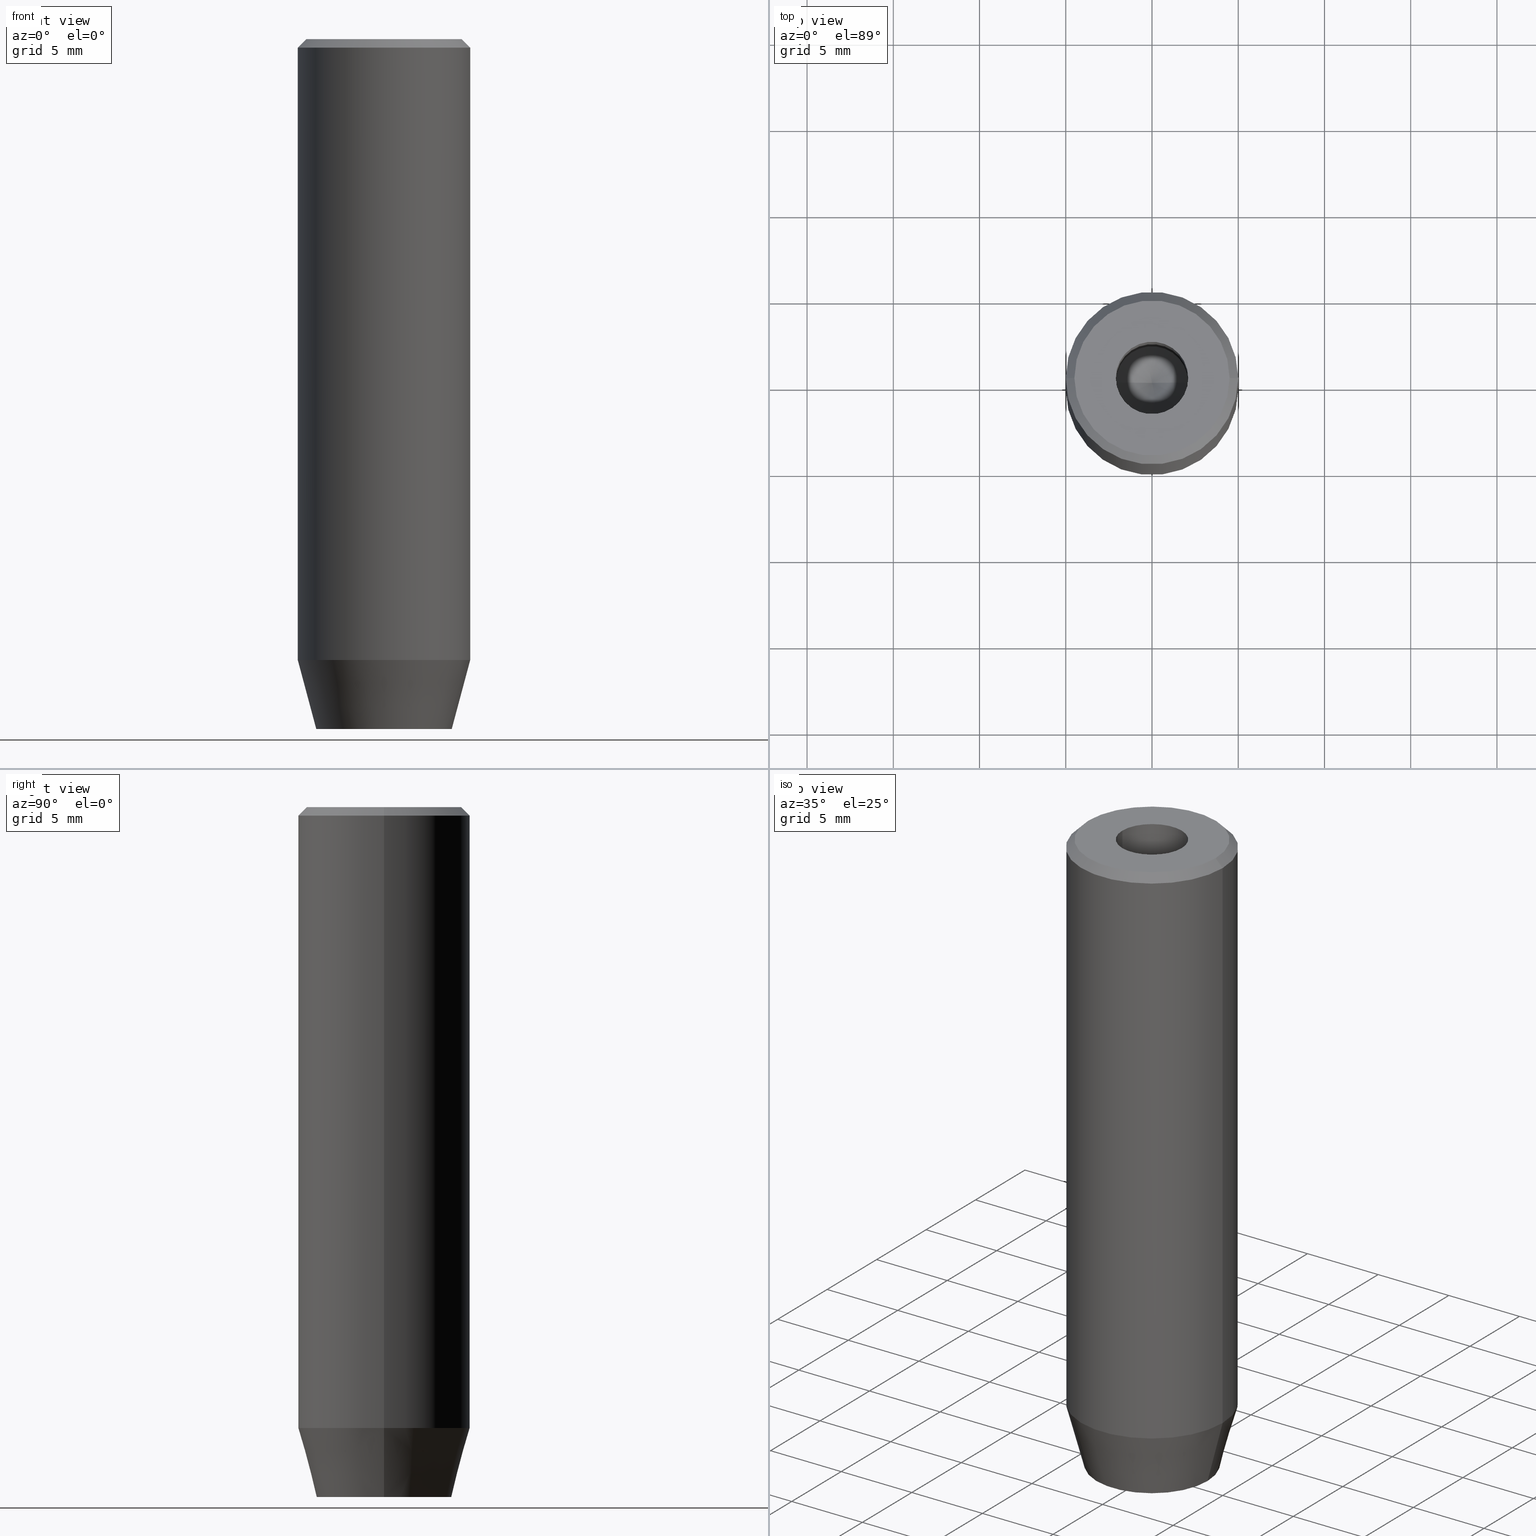
[diagram: canonical four-view strip — front | top / right | iso, engineering-drawing reading convention]
A machine part, canonical four-view strip (front | top / right | iso — engineering-drawing reading convention). The complete STEP part file that produces these views, byte-faithful:
ISO-10303-21;
HEADER;
FILE_DESCRIPTION (( 'STEP AP203' ),
    '1' );
FILE_NAME ('fadb.STEP',
    '2024-01-02T23:08:02',
    ( '' ),
    ( '' ),
    'SwSTEP 2.0',
    'SolidWorks 2019',
    '' );
FILE_SCHEMA (( 'CONFIG_CONTROL_DESIGN' ));
ENDSEC;

DATA;
#1 = EDGE_CURVE ( 'NONE', #580, #581, #550, .T. ) ;
#2 = ORIENTED_EDGE ( 'NONE', *, *, #479, .F. ) ;
#3 = CARTESIAN_POINT ( 'NONE',  ( -3.928203230275508773, 5.466947754046981113E-16, -40.00000000000000000 ) ) ;
#4 = MANIFOLD_SOLID_BREP ( 'Vrt�k z�vitn�ku pro M5 z�vit1', #148 ) ;
#5 = ORIENTED_EDGE ( 'NONE', *, *, #272, .F. ) ;
#6 = DIRECTION ( 'NONE',  ( -0.8660254037844388186, -0.4999999999999996114, 0.000000000000000000 ) ) ;
#7 = EDGE_LOOP ( 'NONE', ( #2, #358, #488 ) ) ;
#8 = VECTOR ( 'NONE', #141, 1000.000000000000000 ) ;
#9 = AXIS2_PLACEMENT_3D ( 'NONE', #508, #333, #50 ) ;
#10 = DIRECTION ( 'NONE',  ( 0.000000000000000000, -1.000000000000000000, 0.000000000000000000 ) ) ;
#11 = CARTESIAN_POINT ( 'NONE',  ( 5.000000000000000888, 0.000000000000000000, -36.00000000000000711 ) ) ;
#12 = EDGE_CURVE ( 'NONE', #214, #393, #281, .T. ) ;
#13 = CARTESIAN_POINT ( 'NONE',  ( -1.999999999999998668, -1.154700538379252572, -37.20000000000000284 ) ) ;
#14 = DIRECTION ( 'NONE',  ( -0.7071067811865500152, 0.000000000000000000, -0.7071067811865451302 ) ) ;
#15 = ORIENTED_EDGE ( 'NONE', *, *, #301, .T. ) ;
#16 = CARTESIAN_POINT ( 'NONE',  ( 2.000000000000000888, 1.154700538379251462, -40.00000000000000000 ) ) ;
#17 = VECTOR ( 'NONE', #387, 1000.000000000000000 ) ;
#18 = EDGE_CURVE ( 'NONE', #320, #260, #238, .T. ) ;
#19 = CARTESIAN_POINT ( 'NONE',  ( -1.000000000000000444, 1.732050807568877637, -37.20000000000000284 ) ) ;
#20 = CALENDAR_DATE ( 2024, 3, 1 ) ;
#21 = CARTESIAN_POINT ( 'NONE',  ( 0.000000000000000000, 3.928203230275508773, -40.00000000000000000 ) ) ;
#22 = PERSON_AND_ORGANIZATION ( #120, #288 ) ;
#23 = DIRECTION ( 'NONE',  ( 0.000000000000000000, 0.000000000000000000, -1.000000000000000000 ) ) ;
#24 = COORDINATED_UNIVERSAL_TIME_OFFSET ( 1, 0, .AHEAD. ) ;
#25 = EDGE_CURVE ( 'NONE', #534, #560, #111, .T. ) ;
#26 = VECTOR ( 'NONE', #510, 1000.000000000000000 ) ;
#27 = LOCAL_TIME ( 0, 8, 2.000000000000000000, #161 ) ;
#28 = SHAPE_DEFINITION_REPRESENTATION ( #501, #206 ) ;
#29 = CC_DESIGN_PERSON_AND_ORGANIZATION_ASSIGNMENT ( #254, #524, ( #173 ) ) ;
#30 = CARTESIAN_POINT ( 'NONE',  ( 0.000000000000000000, 0.000000000000000000, 0.000000000000000000 ) ) ;
#31 = EDGE_CURVE ( 'NONE', #544, #581, #51, .T. ) ;
#32 = CIRCLE ( 'NONE', #481, 3.928203230275508773 ) ;
#33 = LINE ( 'NONE', #209, #233 ) ;
#34 = VECTOR ( 'NONE', #228, 1000.000000000000000 ) ;
#35 = DIRECTION ( 'NONE',  ( 1.000000000000000000, 0.000000000000000000, 0.000000000000000000 ) ) ;
#36 = PLANE ( 'NONE',  #305 ) ;
#37 = VERTEX_POINT ( 'NONE', #323 ) ;
#38 = EDGE_LOOP ( 'NONE', ( #448, #375, #362, #454 ) ) ;
#39 = DIRECTION ( 'NONE',  ( -0.5000000000000001110, 0.8660254037844385966, 0.000000000000000000 ) ) ;
#40 = ORIENTED_EDGE ( 'NONE', *, *, #263, .F. ) ;
#41 = ORIENTED_EDGE ( 'NONE', *, *, #267, .T. ) ;
#42 = LINE ( 'NONE', #356, #123 ) ;
#43 = CARTESIAN_POINT ( 'NONE',  ( 0.000000000000000000, 0.000000000000000000, -15.00000000000000000 ) ) ;
#44 = VERTEX_POINT ( 'NONE', #54 ) ;
#45 = ORIENTED_EDGE ( 'NONE', *, *, #542, .F. ) ;
#46 = FACE_OUTER_BOUND ( 'NONE', #129, .T. ) ;
#47 = ORIENTED_EDGE ( 'NONE', *, *, #414, .F. ) ;
#48 = CARTESIAN_POINT ( 'NONE',  ( 0.000000000000000000, 0.000000000000000000, -40.00000000000000000 ) ) ;
#49 = DIRECTION ( 'NONE',  ( 1.000000000000000000, 0.000000000000000000, 0.000000000000000000 ) ) ;
#50 = DIRECTION ( 'NONE',  ( 1.000000000000000000, 0.000000000000000000, 0.000000000000000000 ) ) ;
#51 = LINE ( 'NONE', #229, #287 ) ;
#52 = VERTEX_POINT ( 'NONE', #3 ) ;
#53 = DIRECTION ( 'NONE',  ( -0.000000000000000000, -0.000000000000000000, 1.000000000000000000 ) ) ;
#54 = CARTESIAN_POINT ( 'NONE',  ( 2.168404344971008868E-16, -2.309401076758503812, -40.00000000000000000 ) ) ;
#55 = CARTESIAN_POINT ( 'NONE',  ( -2.099999999999998757, 2.571758278209439985E-16, -1.990051048614449116E-16 ) ) ;
#56 = AXIS2_PLACEMENT_3D ( 'NONE', #530, #303, #351 ) ;
#57 = ADVANCED_FACE ( 'NONE', ( #46 ), #357, .F. ) ;
#58 = VECTOR ( 'NONE', #142, 1000.000000000000000 ) ;
#59 = FACE_OUTER_BOUND ( 'NONE', #93, .T. ) ;
#60 = FACE_OUTER_BOUND ( 'NONE', #553, .T. ) ;
#61 = LINE ( 'NONE', #325, #411 ) ;
#62 = DIRECTION ( 'NONE',  ( 0.8660254037844385966, -0.5000000000000001110, 0.000000000000000000 ) ) ;
#63 = EDGE_CURVE ( 'NONE', #224, #214, #554, .T. ) ;
#64 = CARTESIAN_POINT ( 'NONE',  ( 0.000000000000000000, 0.000000000000000000, -0.4999999999999935052 ) ) ;
#65 = DIRECTION ( 'NONE',  ( -0.000000000000000000, 0.000000000000000000, -1.000000000000000000 ) ) ;
#66 = CONICAL_SURFACE ( 'NONE', #337, 5.000000000000000888, 0.2617993877991500740 ) ;
#67 = PERSON_AND_ORGANIZATION ( #120, #288 ) ;
#68 = CARTESIAN_POINT ( 'NONE',  ( 0.9999999999999997780, -1.732050807568878747, -37.20000000000000284 ) ) ;
#69 = DESIGN_CONTEXT ( 'detailed design', #536, 'design' ) ;
#70 = CARTESIAN_POINT ( 'NONE',  ( -1.999999999999998668, -1.154700538379252572, -37.20000000000000284 ) ) ;
#71 = COORDINATED_UNIVERSAL_TIME_OFFSET ( 1, 0, .AHEAD. ) ;
#72 = EDGE_CURVE ( 'NONE', #52, #86, #32, .T. ) ;
#73 = LINE ( 'NONE', #463, #92 ) ;
#74 = ADVANCED_FACE ( 'NONE', ( #450 ), #279, .F. ) ;
#75 = APPROVAL_DATE_TIME ( #116, #192 ) ;
#76 = LOCAL_TIME ( 0, 8, 2.000000000000000000, #284 ) ;
#77 = DIRECTION ( 'NONE',  ( -0.000000000000000000, -0.000000000000000000, 1.000000000000000000 ) ) ;
#78 = VECTOR ( 'NONE', #492, 1000.000000000000000 ) ;
#79 = CIRCLE ( 'NONE', #482, 2.099999999999998757 ) ;
#80 = ORIENTED_EDGE ( 'NONE', *, *, #513, .T. ) ;
#81 = DIRECTION ( 'NONE',  ( -0.000000000000000000, -0.000000000000000000, 1.000000000000000000 ) ) ;
#82 = VERTEX_POINT ( 'NONE', #442 ) ;
#83 = ORIENTED_EDGE ( 'NONE', *, *, #378, .F. ) ;
#84 = DIRECTION ( 'NONE',  ( -0.000000000000000000, -0.000000000000000000, 1.000000000000000000 ) ) ;
#85 = EDGE_CURVE ( 'NONE', #320, #82, #377, .T. ) ;
#86 = VERTEX_POINT ( 'NONE', #89 ) ;
#87 = EDGE_LOOP ( 'NONE', ( #406, #211, #353, #529, #170, #276 ) ) ;
#88 = DIRECTION ( 'NONE',  ( -0.000000000000000000, -0.000000000000000000, 1.000000000000000000 ) ) ;
#89 = CARTESIAN_POINT ( 'NONE',  ( 3.928203230275508773, 0.000000000000000000, -40.00000000000000000 ) ) ;
#90 = CC_DESIGN_PERSON_AND_ORGANIZATION_ASSIGNMENT ( #465, #112, ( #331 ) ) ;
#91 = DIRECTION ( 'NONE',  ( -0.8660254037844385966, -0.5000000000000001110, 0.000000000000000000 ) ) ;
#92 = VECTOR ( 'NONE', #417, 1000.000000000000000 ) ;
#93 = EDGE_LOOP ( 'NONE', ( #540, #498, #549, #302, #400, #266 ) ) ;
#94 = ORIENTED_EDGE ( 'NONE', *, *, #559, .T. ) ;
#95 = DIRECTION ( 'NONE',  ( -0.000000000000000000, -0.000000000000000000, 1.000000000000000000 ) ) ;
#96 = DIRECTION ( 'NONE',  ( 1.000000000000000000, 0.000000000000000000, 0.000000000000000000 ) ) ;
#97 = DIRECTION ( 'NONE',  ( 1.000000000000000000, 0.000000000000000000, 0.000000000000000000 ) ) ;
#98 = ADVANCED_FACE ( 'NONE', ( #271 ), #222, .T. ) ;
#99 = ORIENTED_EDGE ( 'NONE', *, *, #391, .F. ) ;
#100 = CARTESIAN_POINT ( 'NONE',  ( 0.000000000000000000, 0.000000000000000000, 0.000000000000000000 ) ) ;
#101 = EDGE_CURVE ( 'NONE', #265, #585, #371, .T. ) ;
#102 = ORIENTED_EDGE ( 'NONE', *, *, #582, .T. ) ;
#103 = DIRECTION ( 'NONE',  ( 1.000000000000000000, 0.000000000000000000, 0.000000000000000000 ) ) ;
#104 = DIRECTION ( 'NONE',  ( 1.000000000000000000, 0.000000000000000000, 0.000000000000000000 ) ) ;
#105 = AXIS2_PLACEMENT_3D ( 'NONE', #299, #156, #475 ) ;
#106 = VECTOR ( 'NONE', #10, 1000.000000000000000 ) ;
#107 = CARTESIAN_POINT ( 'NONE',  ( 4.500000000000003553, 5.817072295949930384E-16, 0.000000000000000000 ) ) ;
#108 = LINE ( 'NONE', #19, #532 ) ;
#109 = EDGE_CURVE ( 'NONE', #133, #580, #511, .T. ) ;
#110 = DIRECTION ( 'NONE',  ( 0.000000000000000000, 0.000000000000000000, -1.000000000000000000 ) ) ;
#111 = LINE ( 'NONE', #466, #193 ) ;
#112 = PERSON_AND_ORGANIZATION_ROLE ( 'classification_officer' ) ;
#113 = DIRECTION ( 'NONE',  ( 0.8660254037844385966, 0.5000000000000001110, 0.000000000000000000 ) ) ;
#114 = LINE ( 'NONE', #290, #17 ) ;
#115 = VECTOR ( 'NONE', #84, 1000.000000000000000 ) ;
#116 = DATE_AND_TIME ( #341, #576 ) ;
#117 = PRODUCT_DEFINITION ( 'NEZN�M�', '', #173, #69 ) ;
#118 = DIRECTION ( 'NONE',  ( 0.000000000000000000, 0.000000000000000000, -1.000000000000000000 ) ) ;
#119 = VECTOR ( 'NONE', #62, 1000.000000000000000 ) ;
#120 = PERSON ( 'NEUR�EN�', 'NEUR�EN�', 'NEUR�EN�', ('NEUR�EN�'), ('NEUR�EN�'), ('NEUR�EN�') ) ;
#121 = CARTESIAN_POINT ( 'NONE',  ( 0.000000000000000000, 0.000000000000000000, -36.00000000000000711 ) ) ;
#122 = ORIENTED_EDGE ( 'NONE', *, *, #63, .F. ) ;
#123 = VECTOR ( 'NONE', #164, 1000.000000000000000 ) ;
#124 = CYLINDRICAL_SURFACE ( 'NONE', #9, 5.000000000000000888 ) ;
#125 = ADVANCED_FACE ( 'NONE', ( #460 ), #66, .T. ) ;
#126 = ORIENTED_EDGE ( 'NONE', *, *, #1, .F. ) ;
#127 = ORIENTED_EDGE ( 'NONE', *, *, #301, .F. ) ;
#128 = ORIENTED_EDGE ( 'NONE', *, *, #461, .F. ) ;
#129 = EDGE_LOOP ( 'NONE', ( #490, #191, #122, #545 ) ) ;
#130 = ORIENTED_EDGE ( 'NONE', *, *, #513, .F. ) ;
#131 = ADVANCED_FACE ( 'NONE', ( #348 ), #528, .F. ) ;
#132 = DIRECTION ( 'NONE',  ( -0.000000000000000000, -0.000000000000000000, 1.000000000000000000 ) ) ;
#133 = VERTEX_POINT ( 'NONE', #250 ) ;
#134 = ORIENTED_EDGE ( 'NONE', *, *, #85, .F. ) ;
#135 = FACE_OUTER_BOUND ( 'NONE', #277, .T. ) ;
#136 = CARTESIAN_POINT ( 'NONE',  ( -1.000000000000000222, -1.732050807568877637, -37.20000000000000284 ) ) ;
#137 = AXIS2_PLACEMENT_3D ( 'NONE', #535, #217, #441 ) ;
#138 =( GEOMETRIC_REPRESENTATION_CONTEXT ( 3 ) GLOBAL_UNCERTAINTY_ASSIGNED_CONTEXT ( ( #197 ) ) GLOBAL_UNIT_ASSIGNED_CONTEXT ( ( #500, #231, #564 ) ) REPRESENTATION_CONTEXT ( 'NONE', 'WORKASPACE' ) );
#139 = ORIENTED_EDGE ( 'NONE', *, *, #418, .T. ) ;
#140 = ORIENTED_EDGE ( 'NONE', *, *, #18, .F. ) ;
#141 = DIRECTION ( 'NONE',  ( -0.8571673007021113344, 1.049727191138617463E-16, 0.5150380749100558209 ) ) ;
#142 = DIRECTION ( 'NONE',  ( 5.633679745264339711E-16, 1.000000000000000000, 0.000000000000000000 ) ) ;
#143 = CYLINDRICAL_SURFACE ( 'NONE', #469, 2.099999999999997868 ) ;
#144 = VERTEX_POINT ( 'NONE', #521 ) ;
#145 = DIRECTION ( 'NONE',  ( -0.000000000000000000, -0.000000000000000000, -1.000000000000000000 ) ) ;
#146 = DIRECTION ( 'NONE',  ( -0.8660254037844387076, 0.5000000000000001110, 0.000000000000000000 ) ) ;
#147 = CARTESIAN_POINT ( 'NONE',  ( 2.099999999999996980, 0.000000000000000000, -15.00000000000000000 ) ) ;
#148 = CLOSED_SHELL ( 'NONE', ( #188, #74, #399, #125, #98, #162, #507, #496, #347, #220, #408, #369, #57, #342, #199, #131, #486, #204, #308 ) ) ;
#149 = DIRECTION ( 'NONE',  ( -1.000000000000000000, 5.633679745264339711E-16, 0.000000000000000000 ) ) ;
#150 = CC_DESIGN_SECURITY_CLASSIFICATION ( #331, ( #173 ) ) ;
#151 = DIRECTION ( 'NONE',  ( 0.8660254037844385966, -0.5000000000000001110, 0.000000000000000000 ) ) ;
#152 = FACE_OUTER_BOUND ( 'NONE', #168, .T. ) ;
#153 = DATE_AND_TIME ( #252, #242 ) ;
#154 = DIRECTION ( 'NONE',  ( -5.633679745264339711E-16, -1.000000000000000000, 0.000000000000000000 ) ) ;
#155 = DATE_TIME_ROLE ( 'classification_date' ) ;
#156 = DIRECTION ( 'NONE',  ( 0.5000000000000001110, 0.8660254037844385966, -0.000000000000000000 ) ) ;
#157 = AXIS2_PLACEMENT_3D ( 'NONE', #383, #23, #296 ) ;
#158 = CARTESIAN_POINT ( 'NONE',  ( 0.000000000000000000, 0.000000000000000000, 0.000000000000000000 ) ) ;
#159 = VECTOR ( 'NONE', #6, 1000.000000000000114 ) ;
#160 = CC_DESIGN_PERSON_AND_ORGANIZATION_ASSIGNMENT ( #384, #473, ( #297 ) ) ;
#161 = COORDINATED_UNIVERSAL_TIME_OFFSET ( 1, 0, .AHEAD. ) ;
#162 = ADVANCED_FACE ( 'NONE', ( #388, #251 ), #258, .T. ) ;
#163 = DATE_AND_TIME ( #245, #27 ) ;
#164 = DIRECTION ( 'NONE',  ( -0.000000000000000000, -0.000000000000000000, -1.000000000000000000 ) ) ;
#165 = AXIS2_PLACEMENT_3D ( 'NONE', #315, #39, #91 ) ;
#166 = DIRECTION ( 'NONE',  ( 1.000000000000000000, 0.000000000000000000, 0.000000000000000000 ) ) ;
#167 = ORIENTED_EDGE ( 'NONE', *, *, #12, .T. ) ;
#168 = EDGE_LOOP ( 'NONE', ( #5, #139, #264, #215 ) ) ;
#169 = DIRECTION ( 'NONE',  ( 0.8660254037844385966, -0.4999999999999999445, 0.000000000000000000 ) ) ;
#170 = ORIENTED_EDGE ( 'NONE', *, *, #474, .F. ) ;
#171 = CC_DESIGN_DATE_AND_TIME_ASSIGNMENT ( #292, #155, ( #331 ) ) ;
#172 = DIRECTION ( 'NONE',  ( 0.000000000000000000, -1.000000000000000000, 0.000000000000000000 ) ) ;
#173 = PRODUCT_DEFINITION_FORMATION_WITH_SPECIFIED_SOURCE ( 'LIBOVOLN�', '', #297, .NOT_KNOWN. ) ;
#174 = EDGE_LOOP ( 'NONE', ( #269, #268, #47, #177 ) ) ;
#175 = ORIENTED_EDGE ( 'NONE', *, *, #295, .F. ) ;
#176 = LINE ( 'NONE', #285, #458 ) ;
#177 = ORIENTED_EDGE ( 'NONE', *, *, #326, .T. ) ;
#178 = ORIENTED_EDGE ( 'NONE', *, *, #567, .F. ) ;
#179 = VERTEX_POINT ( 'NONE', #434 ) ;
#180 = CC_DESIGN_PERSON_AND_ORGANIZATION_ASSIGNMENT ( #522, #205, ( #117 ) ) ;
#181 = FACE_OUTER_BOUND ( 'NONE', #350, .T. ) ;
#182 = CARTESIAN_POINT ( 'NONE',  ( 2.000000000000000888, -1.154700538379252572, -40.00000000000000000 ) ) ;
#183 = AXIS2_PLACEMENT_3D ( 'NONE', #360, #546, #96 ) ;
#184 = ORIENTED_EDGE ( 'NONE', *, *, #523, .T. ) ;
#185 = CARTESIAN_POINT ( 'NONE',  ( 0.000000000000000000, 0.000000000000000000, -37.20000000000000284 ) ) ;
#186 = DIRECTION ( 'NONE',  ( -0.000000000000000000, -0.000000000000000000, 1.000000000000000000 ) ) ;
#187 = CARTESIAN_POINT ( 'NONE',  ( -5.000000000000000888, 6.123233995736767268E-16, -0.4999999999999935052 ) ) ;
#188 = ADVANCED_FACE ( 'NONE', ( #381 ), #247, .F. ) ;
#189 = CARTESIAN_POINT ( 'NONE',  ( -1.000000000000000222, -1.732050807568877637, -40.00000000000000000 ) ) ;
#190 = DIRECTION ( 'NONE',  ( -0.000000000000000000, -0.000000000000000000, -1.000000000000000000 ) ) ;
#191 = ORIENTED_EDGE ( 'NONE', *, *, #12, .F. ) ;
#192 = APPROVAL ( #569, 'NEUR�EN�' ) ;
#193 = VECTOR ( 'NONE', #195, 1000.000000000000000 ) ;
#194 = APPROVAL_ROLE ( '' ) ;
#195 = DIRECTION ( 'NONE',  ( -0.000000000000000000, -0.000000000000000000, -1.000000000000000000 ) ) ;
#196 = LINE ( 'NONE', #424, #293 ) ;
#197 = UNCERTAINTY_MEASURE_WITH_UNIT (LENGTH_MEASURE( 1.000000000000000082E-05 ), #500, 'distance_accuracy_value', 'NONE');
#198 = FACE_OUTER_BOUND ( 'NONE', #273, .T. ) ;
#199 = ADVANCED_FACE ( 'NONE', ( #527 ), #201, .F. ) ;
#200 = PERSON_AND_ORGANIZATION ( #120, #288 ) ;
#201 = PLANE ( 'NONE',  #304 ) ;
#202 = VECTOR ( 'NONE', #88, 1000.000000000000000 ) ;
#203 = AXIS2_PLACEMENT_3D ( 'NONE', #121, #539, #471 ) ;
#204 = ADVANCED_FACE ( 'NONE', ( #243 ), #402, .F. ) ;
#205 = PERSON_AND_ORGANIZATION_ROLE ( 'creator' ) ;
#206 = ADVANCED_BREP_SHAPE_REPRESENTATION ( 'fadb', ( #4, #352 ), #138 ) ;
#207 = CIRCLE ( 'NONE', #253, 3.928203230275508773 ) ;
#208 = CARTESIAN_POINT ( 'NONE',  ( -1.999999999999997780, 1.154700538379253238, -40.00000000000000000 ) ) ;
#209 = CARTESIAN_POINT ( 'NONE',  ( 2.000000000000000888, 0.000000000000000000, -37.20000000000000284 ) ) ;
#210 = DIRECTION ( 'NONE',  ( 1.000000000000000000, 0.000000000000000000, 0.000000000000000000 ) ) ;
#211 = ORIENTED_EDGE ( 'NONE', *, *, #523, .F. ) ;
#212 = EDGE_LOOP ( 'NONE', ( #102, #502 ) ) ;
#213 = EDGE_CURVE ( 'NONE', #52, #37, #114, .T. ) ;
#214 = VERTEX_POINT ( 'NONE', #70 ) ;
#215 = ORIENTED_EDGE ( 'NONE', *, *, #542, .T. ) ;
#216 = VERTEX_POINT ( 'NONE', #428 ) ;
#217 = DIRECTION ( 'NONE',  ( -0.000000000000000000, -0.000000000000000000, 1.000000000000000000 ) ) ;
#218 = CONICAL_SURFACE ( 'NONE', #183, 5.000000000000000888, 0.2617993877991500740 ) ;
#219 = CIRCLE ( 'NONE', #203, 5.000000000000000888 ) ;
#220 = ADVANCED_FACE ( 'NONE', ( #198 ), #390, .T. ) ;
#221 = ORIENTED_EDGE ( 'NONE', *, *, #298, .F. ) ;
#222 = CYLINDRICAL_SURFACE ( 'NONE', #561, 5.000000000000000888 ) ;
#223 = EDGE_CURVE ( 'NONE', #216, #581, #259, .T. ) ;
#224 = VERTEX_POINT ( 'NONE', #499 ) ;
#225 = EDGE_LOOP ( 'NONE', ( #236, #366, #99, #15 ) ) ;
#226 = PLANE ( 'NONE',  #420 ) ;
#227 = DIRECTION ( 'NONE',  ( -0.000000000000000000, -0.000000000000000000, 1.000000000000000000 ) ) ;
#228 = DIRECTION ( 'NONE',  ( 5.633679745264339711E-16, 1.000000000000000000, 0.000000000000000000 ) ) ;
#229 = CARTESIAN_POINT ( 'NONE',  ( 4.500000000000003553, 5.510910596163094486E-16, 0.000000000000000000 ) ) ;
#230 = ORIENTED_EDGE ( 'NONE', *, *, #452, .T. ) ;
#231 =( NAMED_UNIT ( * ) PLANE_ANGLE_UNIT ( ) SI_UNIT ( $, .RADIAN. ) );
#232 = AXIS2_PLACEMENT_3D ( 'NONE', #21, #118, #339 ) ;
#233 = VECTOR ( 'NONE', #172, 1000.000000000000000 ) ;
#234 = PLANE ( 'NONE',  #319 ) ;
#235 = LINE ( 'NONE', #189, #495 ) ;
#236 = ORIENTED_EDGE ( 'NONE', *, *, #101, .T. ) ;
#237 = CARTESIAN_POINT ( 'NONE',  ( 0.9999999999999997780, -1.732050807568878747, -40.00000000000000000 ) ) ;
#238 = LINE ( 'NONE', #365, #26 ) ;
#239 = CARTESIAN_POINT ( 'NONE',  ( 0.000000000000000000, 0.000000000000000000, -36.00000000000000711 ) ) ;
#240 = APPROVAL_DATE_TIME ( #153, #435 ) ;
#241 = EDGE_CURVE ( 'NONE', #86, #52, #207, .T. ) ;
#242 = LOCAL_TIME ( 0, 8, 2.000000000000000000, #71 ) ;
#243 = FACE_OUTER_BOUND ( 'NONE', #397, .T. ) ;
#244 = CARTESIAN_POINT ( 'NONE',  ( -1.999999999999998668, -1.154700538379252572, -40.00000000000000000 ) ) ;
#245 = CALENDAR_DATE ( 2024, 3, 1 ) ;
#246 = CC_DESIGN_DATE_AND_TIME_ASSIGNMENT ( #163, #568, ( #117 ) ) ;
#247 = CYLINDRICAL_SURFACE ( 'NONE', #430, 2.099999999999997868 ) ;
#248 = DIRECTION ( 'NONE',  ( -1.000000000000000000, 0.000000000000000000, 0.000000000000000000 ) ) ;
#249 = DIRECTION ( 'NONE',  ( 0.8660254037844388186, 0.4999999999999996669, 0.000000000000000000 ) ) ;
#250 = CARTESIAN_POINT ( 'NONE',  ( -4.500000000000003553, 0.000000000000000000, 0.000000000000000000 ) ) ;
#251 = FACE_OUTER_BOUND ( 'NONE', #444, .T. ) ;
#252 = CALENDAR_DATE ( 2024, 3, 1 ) ;
#253 = AXIS2_PLACEMENT_3D ( 'NONE', #48, #95, #103 ) ;
#254 = PERSON_AND_ORGANIZATION ( #120, #288 ) ;
#255 = CC_DESIGN_APPROVAL ( #192, ( #173 ) ) ;
#256 = APPROVAL ( #389, 'NEUR�EN�' ) ;
#257 = CARTESIAN_POINT ( 'NONE',  ( -5.000000000000000888, 6.123233995736767268E-16, 0.000000000000000000 ) ) ;
#258 = PLANE ( 'NONE',  #232 ) ;
#259 = LINE ( 'NONE', #480, #78 ) ;
#260 = VERTEX_POINT ( 'NONE', #55 ) ;
#261 = AXIS2_PLACEMENT_3D ( 'NONE', #274, #449, #166 ) ;
#262 = EDGE_LOOP ( 'NONE', ( #324, #584, #307, #548 ) ) ;
#263 = EDGE_CURVE ( 'NONE', #82, #316, #317, .T. ) ;
#264 = ORIENTED_EDGE ( 'NONE', *, *, #223, .T. ) ;
#265 = VERTEX_POINT ( 'NONE', #445 ) ;
#266 = ORIENTED_EDGE ( 'NONE', *, *, #573, .T. ) ;
#267 = EDGE_CURVE ( 'NONE', #82, #320, #344, .T. ) ;
#268 = ORIENTED_EDGE ( 'NONE', *, *, #25, .F. ) ;
#269 = ORIENTED_EDGE ( 'NONE', *, *, #474, .T. ) ;
#270 = ORIENTED_EDGE ( 'NONE', *, *, #72, .F. ) ;
#271 = FACE_OUTER_BOUND ( 'NONE', #262, .T. ) ;
#272 = EDGE_CURVE ( 'NONE', #37, #580, #300, .T. ) ;
#273 = EDGE_LOOP ( 'NONE', ( #401, #440, #359, #45 ) ) ;
#274 = CARTESIAN_POINT ( 'NONE',  ( 0.000000000000000000, 0.000000000000000000, -15.00000000000000000 ) ) ;
#275 = DIRECTION ( 'NONE',  ( 0.000000000000000000, -0.000000000000000000, 1.000000000000000000 ) ) ;
#276 = ORIENTED_EDGE ( 'NONE', *, *, #101, .F. ) ;
#277 = EDGE_LOOP ( 'NONE', ( #184, #447, #491, #167 ) ) ;
#278 = CARTESIAN_POINT ( 'NONE',  ( 2.168404344971008868E-16, -2.309401076758503812, -37.20000000000000284 ) ) ;
#279 = CONICAL_SURFACE ( 'NONE', #329, 2.099999999999996980, 1.029744258676652535 ) ;
#280 = DIRECTION ( 'NONE',  ( -0.000000000000000000, -0.000000000000000000, -1.000000000000000000 ) ) ;
#281 = LINE ( 'NONE', #13, #583 ) ;
#282 = DIRECTION ( 'NONE',  ( 0.2588190451025213501, 0.000000000000000000, 0.9659258262890680902 ) ) ;
#283 = DIRECTION ( 'NONE',  ( 1.000000000000000000, 0.000000000000000000, -0.000000000000000000 ) ) ;
#284 = COORDINATED_UNIVERSAL_TIME_OFFSET ( 1, 0, .AHEAD. ) ;
#285 = CARTESIAN_POINT ( 'NONE',  ( 2.000000000000000888, 1.154700538379251462, -37.20000000000000284 ) ) ;
#286 = CC_DESIGN_PERSON_AND_ORGANIZATION_ASSIGNMENT ( #336, #335, ( #173 ) ) ;
#287 = VECTOR ( 'NONE', #552, 1000.000000000000114 ) ;
#288 = ORGANIZATION ( 'NEUR�EN�', 'NEUR�EN�', '' ) ;
#289 = CARTESIAN_POINT ( 'NONE',  ( -4.500000000000003553, 0.000000000000000000, 0.000000000000000000 ) ) ;
#290 = CARTESIAN_POINT ( 'NONE',  ( -5.000000000000000888, 6.123233995736767268E-16, -36.00000000000000711 ) ) ;
#291 = DIRECTION ( 'NONE',  ( -0.000000000000000000, -0.000000000000000000, 1.000000000000000000 ) ) ;
#292 = DATE_AND_TIME ( #467, #76 ) ;
#293 = VECTOR ( 'NONE', #151, 1000.000000000000000 ) ;
#294 = VECTOR ( 'NONE', #557, 1000.000000000000000 ) ;
#295 = EDGE_CURVE ( 'NONE', #216, #37, #570, .T. ) ;
#296 = DIRECTION ( 'NONE',  ( -1.000000000000000000, 0.000000000000000000, 0.000000000000000000 ) ) ;
#297 = PRODUCT ( 'fadb', 'fadb', '', ( #340 ) ) ;
#298 = EDGE_CURVE ( 'NONE', #316, #260, #385, .T. ) ;
#299 = CARTESIAN_POINT ( 'NONE',  ( 1.000000000000000444, 1.732050807568877637, -37.20000000000000284 ) ) ;
#300 = LINE ( 'NONE', #257, #115 ) ;
#301 = EDGE_CURVE ( 'NONE', #179, #265, #42, .T. ) ;
#302 = ORIENTED_EDGE ( 'NONE', *, *, #547, .T. ) ;
#303 = DIRECTION ( 'NONE',  ( -0.000000000000000000, -0.000000000000000000, 1.000000000000000000 ) ) ;
#304 = AXIS2_PLACEMENT_3D ( 'NONE', #472, #283, #65 ) ;
#305 = AXIS2_PLACEMENT_3D ( 'NONE', #328, #275, #210 ) ;
#306 = DIRECTION ( 'NONE',  ( 1.000000000000000000, 0.000000000000000000, 0.000000000000000000 ) ) ;
#307 = ORIENTED_EDGE ( 'NONE', *, *, #1, .T. ) ;
#308 = ADVANCED_FACE ( 'NONE', ( #60 ), #143, .F. ) ;
#309 = CARTESIAN_POINT ( 'NONE',  ( 0.000000000000000000, 0.000000000000000000, -40.00000000000000000 ) ) ;
#310 = VERTEX_POINT ( 'NONE', #556 ) ;
#311 = CARTESIAN_POINT ( 'NONE',  ( 2.099999999999998757, 0.000000000000000000, -1.990051048614449116E-16 ) ) ;
#312 = ORIENTED_EDGE ( 'NONE', *, *, #241, .F. ) ;
#313 = ORIENTED_EDGE ( 'NONE', *, *, #18, .T. ) ;
#314 = DIRECTION ( 'NONE',  ( -0.5000000000000000000, -0.8660254037844387076, 0.000000000000000000 ) ) ;
#315 = CARTESIAN_POINT ( 'NONE',  ( -1.000000000000000444, 1.732050807568877637, -37.20000000000000284 ) ) ;
#316 = VERTEX_POINT ( 'NONE', #311 ) ;
#317 = LINE ( 'NONE', #489, #202 ) ;
#318 = VECTOR ( 'NONE', #494, 999.9999999999998863 ) ;
#319 = AXIS2_PLACEMENT_3D ( 'NONE', #185, #376, #551 ) ;
#320 = VERTEX_POINT ( 'NONE', #587 ) ;
#321 = ORIENTED_EDGE ( 'NONE', *, *, #31, .T. ) ;
#322 = CARTESIAN_POINT ( 'NONE',  ( 0.000000000000000000, 0.000000000000000000, 0.000000000000000000 ) ) ;
#323 = CARTESIAN_POINT ( 'NONE',  ( -5.000000000000000888, 6.123233995736767268E-16, -36.00000000000000711 ) ) ;
#324 = ORIENTED_EDGE ( 'NONE', *, *, #295, .T. ) ;
#325 = CARTESIAN_POINT ( 'NONE',  ( 0.9999999999999997780, -1.732050807568878747, -37.20000000000000284 ) ) ;
#326 = EDGE_CURVE ( 'NONE', #453, #585, #176, .T. ) ;
#327 = DIRECTION ( 'NONE',  ( 1.000000000000000000, 0.000000000000000000, 0.000000000000000000 ) ) ;
#328 = CARTESIAN_POINT ( 'NONE',  ( 0.000000000000000000, 0.000000000000000000, 0.000000000000000000 ) ) ;
#329 = AXIS2_PLACEMENT_3D ( 'NONE', #543, #437, #487 ) ;
#330 = CARTESIAN_POINT ( 'NONE',  ( 2.000000000000000888, 1.154700538379251462, -37.20000000000000284 ) ) ;
#331 = SECURITY_CLASSIFICATION ( '', '', #512 ) ;
#332 = EDGE_CURVE ( 'NONE', #456, #265, #73, .T. ) ;
#333 = DIRECTION ( 'NONE',  ( -0.000000000000000000, -0.000000000000000000, 1.000000000000000000 ) ) ;
#334 = CARTESIAN_POINT ( 'NONE',  ( -1.999999999999997780, 1.154700538379253238, -37.20000000000000284 ) ) ;
#335 = PERSON_AND_ORGANIZATION_ROLE ( 'design_supplier' ) ;
#336 = PERSON_AND_ORGANIZATION ( #120, #288 ) ;
#337 = AXIS2_PLACEMENT_3D ( 'NONE', #239, #77, #35 ) ;
#338 = CIRCLE ( 'NONE', #563, 4.500000000000003553 ) ;
#339 = DIRECTION ( 'NONE',  ( -1.000000000000000000, 0.000000000000000000, -0.000000000000000000 ) ) ;
#340 = MECHANICAL_CONTEXT ( 'NONE', #361, 'mechanical' ) ;
#341 = CALENDAR_DATE ( 2024, 3, 1 ) ;
#342 = ADVANCED_FACE ( 'NONE', ( #558 ), #509, .F. ) ;
#343 = APPROVAL_STATUS ( 'not_yet_approved' ) ;
#344 = CIRCLE ( 'NONE', #261, 2.099999999999996980 ) ;
#345 = DIRECTION ( 'NONE',  ( 1.000000000000000000, 0.000000000000000000, 0.000000000000000000 ) ) ;
#346 = APPROVAL_PERSON_ORGANIZATION ( #67, #256, #517 ) ;
#347 = ADVANCED_FACE ( 'NONE', ( #427 ), #218, .T. ) ;
#348 = FACE_OUTER_BOUND ( 'NONE', #225, .T. ) ;
#349 = CARTESIAN_POINT ( 'NONE',  ( -1.999999999999998224, 1.126735949052866956E-15, -40.00000000000000000 ) ) ;
#350 = EDGE_LOOP ( 'NONE', ( #439, #127, #83, #230 ) ) ;
#351 = DIRECTION ( 'NONE',  ( 1.000000000000000000, 0.000000000000000000, 0.000000000000000000 ) ) ;
#352 = AXIS2_PLACEMENT_3D ( 'NONE', #158, #429, #380 ) ;
#353 = ORIENTED_EDGE ( 'NONE', *, *, #433, .F. ) ;
#354 = EDGE_LOOP ( 'NONE', ( #134, #313, #80, #40 ) ) ;
#355 = ORIENTED_EDGE ( 'NONE', *, *, #479, .T. ) ;
#356 = CARTESIAN_POINT ( 'NONE',  ( 0.000000000000000000, 2.309401076758503812, -37.20000000000000284 ) ) ;
#357 = PLANE ( 'NONE',  #525 ) ;
#358 = ORIENTED_EDGE ( 'NONE', *, *, #404, .T. ) ;
#359 = ORIENTED_EDGE ( 'NONE', *, *, #109, .T. ) ;
#360 = CARTESIAN_POINT ( 'NONE',  ( 0.000000000000000000, 0.000000000000000000, -36.00000000000000711 ) ) ;
#361 = APPLICATION_CONTEXT ( 'configuration controlled 3d designs of mechanical parts and assemblies' ) ;
#362 = ORIENTED_EDGE ( 'NONE', *, *, #567, .T. ) ;
#363 = LINE ( 'NONE', #416, #58 ) ;
#364 = VECTOR ( 'NONE', #14, 1000.000000000000114 ) ;
#365 = CARTESIAN_POINT ( 'NONE',  ( -2.099999999999997868, 2.571758278209438999E-16, 0.000000000000000000 ) ) ;
#366 = ORIENTED_EDGE ( 'NONE', *, *, #326, .F. ) ;
#367 = CARTESIAN_POINT ( 'NONE',  ( -1.000000000000000222, -1.732050807568877637, -37.20000000000000284 ) ) ;
#368 = FACE_BOUND ( 'NONE', #415, .T. ) ;
#369 = ADVANCED_FACE ( 'NONE', ( #135 ), #226, .F. ) ;
#370 = DIRECTION ( 'NONE',  ( 1.000000000000000000, 0.000000000000000000, 0.000000000000000000 ) ) ;
#371 = LINE ( 'NONE', #412, #119 ) ;
#372 = LINE ( 'NONE', #147, #294 ) ;
#373 = LINE ( 'NONE', #334, #459 ) ;
#374 = CARTESIAN_POINT ( 'NONE',  ( -1.999999999999998224, 1.126735949052866956E-15, -37.20000000000000284 ) ) ;
#375 = ORIENTED_EDGE ( 'NONE', *, *, #72, .T. ) ;
#376 = DIRECTION ( 'NONE',  ( 0.000000000000000000, 0.000000000000000000, -1.000000000000000000 ) ) ;
#377 = CIRCLE ( 'NONE', #575, 2.099999999999996980 ) ;
#378 = EDGE_CURVE ( 'NONE', #144, #179, #108, .T. ) ;
#379 = CARTESIAN_POINT ( 'NONE',  ( 0.000000000000000000, 0.000000000000000000, 0.000000000000000000 ) ) ;
#380 = DIRECTION ( 'NONE',  ( 1.000000000000000000, 0.000000000000000000, 0.000000000000000000 ) ) ;
#381 = FACE_OUTER_BOUND ( 'NONE', #354, .T. ) ;
#382 = DIRECTION ( 'NONE',  ( 0.4999999999999996669, -0.8660254037844388186, 0.000000000000000000 ) ) ;
#383 = CARTESIAN_POINT ( 'NONE',  ( 0.000000000000000000, 0.000000000000000000, 0.000000000000000000 ) ) ;
#384 = PERSON_AND_ORGANIZATION ( #120, #288 ) ;
#385 = CIRCLE ( 'NONE', #137, 2.099999999999998757 ) ;
#386 = AXIS2_PLACEMENT_3D ( 'NONE', #322, #53, #104 ) ;
#387 = DIRECTION ( 'NONE',  ( -0.2588190451025213501, 3.169619151431772337E-17, 0.9659258262890680902 ) ) ;
#388 = FACE_BOUND ( 'NONE', #87, .T. ) ;
#389 = APPROVAL_STATUS ( 'not_yet_approved' ) ;
#390 = CONICAL_SURFACE ( 'NONE', #157, 4.500000000000003553, 0.7853981633974517207 ) ;
#391 = EDGE_CURVE ( 'NONE', #179, #453, #196, .T. ) ;
#392 = VECTOR ( 'NONE', #145, 1000.000000000000000 ) ;
#393 = VERTEX_POINT ( 'NONE', #244 ) ;
#394 = CARTESIAN_POINT ( 'NONE',  ( -2.099999999999996980, 2.571758278209438013E-16, -15.00000000000000000 ) ) ;
#395 = DIRECTION ( 'NONE',  ( 1.000000000000000000, 0.000000000000000000, 0.000000000000000000 ) ) ;
#396 = PLANE ( 'NONE',  #165 ) ;
#397 = EDGE_LOOP ( 'NONE', ( #577, #355, #41 ) ) ;
#398 = EDGE_LOOP ( 'NONE', ( #128, #321, #126, #405 ) ) ;
#399 = ADVANCED_FACE ( 'NONE', ( #566 ), #493, .T. ) ;
#400 = ORIENTED_EDGE ( 'NONE', *, *, #63, .T. ) ;
#401 = ORIENTED_EDGE ( 'NONE', *, *, #31, .F. ) ;
#402 = CONICAL_SURFACE ( 'NONE', #505, 2.099999999999996980, 1.029744258676652535 ) ;
#403 = LOCAL_TIME ( 0, 8, 2.000000000000000000, #476 ) ;
#404 = EDGE_CURVE ( 'NONE', #310, #320, #574, .T. ) ;
#405 = ORIENTED_EDGE ( 'NONE', *, *, #109, .F. ) ;
#406 = ORIENTED_EDGE ( 'NONE', *, *, #332, .F. ) ;
#407 = ORIENTED_EDGE ( 'NONE', *, *, #263, .T. ) ;
#408 = ADVANCED_FACE ( 'NONE', ( #181 ), #396, .F. ) ;
#409 = LINE ( 'NONE', #237, #159 ) ;
#410 = EDGE_LOOP ( 'NONE', ( #483, #533, #175, #178 ) ) ;
#411 = VECTOR ( 'NONE', #579, 1000.000000000000114 ) ;
#412 = CARTESIAN_POINT ( 'NONE',  ( 1.000000000000000444, 1.732050807568877637, -40.00000000000000000 ) ) ;
#413 = LINE ( 'NONE', #11, #571 ) ;
#414 = EDGE_CURVE ( 'NONE', #453, #534, #33, .T. ) ;
#415 = EDGE_LOOP ( 'NONE', ( #221, #130 ) ) ;
#416 = CARTESIAN_POINT ( 'NONE',  ( -1.999999999999998224, 1.126735949052866956E-15, -37.20000000000000284 ) ) ;
#417 = DIRECTION ( 'NONE',  ( 0.8660254037844385966, 0.5000000000000001110, 0.000000000000000000 ) ) ;
#418 = EDGE_CURVE ( 'NONE', #37, #216, #219, .T. ) ;
#419 = DIRECTION ( 'NONE',  ( -0.000000000000000000, -0.000000000000000000, 1.000000000000000000 ) ) ;
#420 = AXIS2_PLACEMENT_3D ( 'NONE', #374, #149, #154 ) ;
#421 = APPROVAL_PERSON_ORGANIZATION ( #22, #435, #194 ) ;
#422 = CARTESIAN_POINT ( 'NONE',  ( 0.000000000000000000, 0.000000000000000000, -15.00000000000000000 ) ) ;
#423 = APPROVAL_DATE_TIME ( #432, #256 ) ;
#424 = CARTESIAN_POINT ( 'NONE',  ( 1.000000000000000444, 1.732050807568877637, -37.20000000000000284 ) ) ;
#425 = DIRECTION ( 'NONE',  ( 1.000000000000000000, 0.000000000000000000, 0.000000000000000000 ) ) ;
#426 = DIRECTION ( 'NONE',  ( -0.000000000000000000, -0.000000000000000000, 1.000000000000000000 ) ) ;
#427 = FACE_OUTER_BOUND ( 'NONE', #38, .T. ) ;
#428 = CARTESIAN_POINT ( 'NONE',  ( 5.000000000000000888, 0.000000000000000000, -36.00000000000000711 ) ) ;
#429 = DIRECTION ( 'NONE',  ( 0.000000000000000000, 0.000000000000000000, 1.000000000000000000 ) ) ;
#430 = AXIS2_PLACEMENT_3D ( 'NONE', #30, #291, #345 ) ;
#431 = CC_DESIGN_APPROVAL ( #435, ( #117 ) ) ;
#432 = DATE_AND_TIME ( #20, #403 ) ;
#433 = EDGE_CURVE ( 'NONE', #44, #393, #235, .T. ) ;
#434 = CARTESIAN_POINT ( 'NONE',  ( 0.000000000000000000, 2.309401076758503812, -37.20000000000000284 ) ) ;
#435 = APPROVAL ( #343, 'NEUR�EN�' ) ;
#436 = DIRECTION ( 'NONE',  ( 1.000000000000000000, 0.000000000000000000, 0.000000000000000000 ) ) ;
#437 = DIRECTION ( 'NONE',  ( -0.000000000000000000, -0.000000000000000000, 1.000000000000000000 ) ) ;
#438 = ORIENTED_EDGE ( 'NONE', *, *, #519, .F. ) ;
#439 = ORIENTED_EDGE ( 'NONE', *, *, #332, .T. ) ;
#440 = ORIENTED_EDGE ( 'NONE', *, *, #582, .F. ) ;
#441 = DIRECTION ( 'NONE',  ( 1.000000000000000000, 0.000000000000000000, 0.000000000000000000 ) ) ;
#442 = CARTESIAN_POINT ( 'NONE',  ( 2.099999999999996980, 0.000000000000000000, -15.00000000000000000 ) ) ;
#443 = ORIENTED_EDGE ( 'NONE', *, *, #547, .F. ) ;
#444 = EDGE_LOOP ( 'NONE', ( #312, #270 ) ) ;
#445 = CARTESIAN_POINT ( 'NONE',  ( 0.000000000000000000, 2.309401076758503812, -40.00000000000000000 ) ) ;
#446 = AXIS2_PLACEMENT_3D ( 'NONE', #64, #464, #327 ) ;
#447 = ORIENTED_EDGE ( 'NONE', *, *, #452, .F. ) ;
#448 = ORIENTED_EDGE ( 'NONE', *, *, #213, .F. ) ;
#449 = DIRECTION ( 'NONE',  ( -0.000000000000000000, -0.000000000000000000, 1.000000000000000000 ) ) ;
#450 = FACE_OUTER_BOUND ( 'NONE', #7, .T. ) ;
#451 = LINE ( 'NONE', #349, #34 ) ;
#452 = EDGE_CURVE ( 'NONE', #144, #456, #373, .T. ) ;
#453 = VERTEX_POINT ( 'NONE', #330 ) ;
#454 = ORIENTED_EDGE ( 'NONE', *, *, #418, .F. ) ;
#455 = LINE ( 'NONE', #457, #106 ) ;
#456 = VERTEX_POINT ( 'NONE', #208 ) ;
#457 = CARTESIAN_POINT ( 'NONE',  ( 2.000000000000000888, 0.000000000000000000, -40.00000000000000000 ) ) ;
#458 = VECTOR ( 'NONE', #468, 1000.000000000000000 ) ;
#459 = VECTOR ( 'NONE', #280, 1000.000000000000000 ) ;
#460 = FACE_OUTER_BOUND ( 'NONE', #410, .T. ) ;
#461 = EDGE_CURVE ( 'NONE', #544, #133, #338, .T. ) ;
#462 = LINE ( 'NONE', #278, #392 ) ;
#463 = CARTESIAN_POINT ( 'NONE',  ( -1.000000000000000444, 1.732050807568877637, -40.00000000000000000 ) ) ;
#464 = DIRECTION ( 'NONE',  ( 0.000000000000000000, 0.000000000000000000, -1.000000000000000000 ) ) ;
#465 = PERSON_AND_ORGANIZATION ( #120, #288 ) ;
#466 = CARTESIAN_POINT ( 'NONE',  ( 2.000000000000000888, -1.154700538379252572, -37.20000000000000284 ) ) ;
#467 = CALENDAR_DATE ( 2024, 3, 1 ) ;
#468 = DIRECTION ( 'NONE',  ( -0.000000000000000000, -0.000000000000000000, -1.000000000000000000 ) ) ;
#469 = AXIS2_PLACEMENT_3D ( 'NONE', #100, #186, #370 ) ;
#470 = CC_DESIGN_APPROVAL ( #256, ( #331 ) ) ;
#471 = DIRECTION ( 'NONE',  ( 1.000000000000000000, 0.000000000000000000, 0.000000000000000000 ) ) ;
#472 = CARTESIAN_POINT ( 'NONE',  ( 2.000000000000000888, 0.000000000000000000, -37.20000000000000284 ) ) ;
#473 = PERSON_AND_ORGANIZATION_ROLE ( 'design_owner' ) ;
#474 = EDGE_CURVE ( 'NONE', #585, #560, #455, .T. ) ;
#475 = DIRECTION ( 'NONE',  ( -0.8660254037844385966, 0.5000000000000001110, 0.000000000000000000 ) ) ;
#476 = COORDINATED_UNIVERSAL_TIME_OFFSET ( 1, 0, .AHEAD. ) ;
#477 = APPROVAL_ROLE ( '' ) ;
#478 = AXIS2_PLACEMENT_3D ( 'NONE', #68, #382, #249 ) ;
#479 = EDGE_CURVE ( 'NONE', #310, #82, #372, .T. ) ;
#480 = CARTESIAN_POINT ( 'NONE',  ( 5.000000000000000888, 0.000000000000000000, 0.000000000000000000 ) ) ;
#481 = AXIS2_PLACEMENT_3D ( 'NONE', #309, #227, #97 ) ;
#482 = AXIS2_PLACEMENT_3D ( 'NONE', #562, #531, #306 ) ;
#483 = ORIENTED_EDGE ( 'NONE', *, *, #241, .T. ) ;
#484 = CARTESIAN_POINT ( 'NONE',  ( 0.000000000000000000, 0.000000000000000000, -0.4999999999999935052 ) ) ;
#485 = ORIENTED_EDGE ( 'NONE', *, *, #298, .T. ) ;
#486 = ADVANCED_FACE ( 'NONE', ( #59 ), #234, .T. ) ;
#487 = DIRECTION ( 'NONE',  ( 1.000000000000000000, 0.000000000000000000, 0.000000000000000000 ) ) ;
#488 = ORIENTED_EDGE ( 'NONE', *, *, #85, .T. ) ;
#489 = CARTESIAN_POINT ( 'NONE',  ( 2.099999999999997868, 0.000000000000000000, 0.000000000000000000 ) ) ;
#490 = ORIENTED_EDGE ( 'NONE', *, *, #433, .T. ) ;
#491 = ORIENTED_EDGE ( 'NONE', *, *, #573, .F. ) ;
#492 = DIRECTION ( 'NONE',  ( -0.000000000000000000, -0.000000000000000000, 1.000000000000000000 ) ) ;
#493 = CONICAL_SURFACE ( 'NONE', #518, 4.500000000000003553, 0.7853981633974517207 ) ;
#494 = DIRECTION ( 'NONE',  ( -0.8660254037844387076, 0.5000000000000001110, 0.000000000000000000 ) ) ;
#495 = VECTOR ( 'NONE', #146, 999.9999999999998863 ) ;
#496 = ADVANCED_FACE ( 'NONE', ( #152 ), #124, .T. ) ;
#497 = EDGE_LOOP ( 'NONE', ( #94, #438, #443, #538 ) ) ;
#498 = ORIENTED_EDGE ( 'NONE', *, *, #391, .T. ) ;
#499 = CARTESIAN_POINT ( 'NONE',  ( 2.168404344971008868E-16, -2.309401076758503812, -37.20000000000000284 ) ) ;
#500 =( LENGTH_UNIT ( ) NAMED_UNIT ( * ) SI_UNIT ( .MILLI., .METRE. ) );
#501 = PRODUCT_DEFINITION_SHAPE ( 'NONE', 'NONE',  #117 ) ;
#502 = ORIENTED_EDGE ( 'NONE', *, *, #461, .T. ) ;
#503 = CARTESIAN_POINT ( 'NONE',  ( 5.000000000000000888, 0.000000000000000000, -0.4999999999999935052 ) ) ;
#504 = FACE_OUTER_BOUND ( 'NONE', #212, .T. ) ;
#505 = AXIS2_PLACEMENT_3D ( 'NONE', #422, #426, #515 ) ;
#506 = APPROVAL_PERSON_ORGANIZATION ( #200, #192, #477 ) ;
#507 = ADVANCED_FACE ( 'NONE', ( #368, #504 ), #36, .T. ) ;
#508 = CARTESIAN_POINT ( 'NONE',  ( 0.000000000000000000, 0.000000000000000000, 0.000000000000000000 ) ) ;
#509 = PLANE ( 'NONE',  #478 ) ;
#510 = DIRECTION ( 'NONE',  ( -0.000000000000000000, -0.000000000000000000, 1.000000000000000000 ) ) ;
#511 = LINE ( 'NONE', #289, #364 ) ;
#512 = SECURITY_CLASSIFICATION_LEVEL ( 'unclassified' ) ;
#513 = EDGE_CURVE ( 'NONE', #260, #316, #79, .T. ) ;
#514 = CARTESIAN_POINT ( 'NONE',  ( 0.000000000000000000, 0.000000000000000000, 0.000000000000000000 ) ) ;
#515 = DIRECTION ( 'NONE',  ( 1.000000000000000000, 0.000000000000000000, 0.000000000000000000 ) ) ;
#516 = DIRECTION ( 'NONE',  ( 0.000000000000000000, 0.000000000000000000, -1.000000000000000000 ) ) ;
#517 = APPROVAL_ROLE ( '' ) ;
#518 = AXIS2_PLACEMENT_3D ( 'NONE', #379, #516, #248 ) ;
#519 = EDGE_CURVE ( 'NONE', #224, #44, #462, .T. ) ;
#520 = APPLICATION_PROTOCOL_DEFINITION ( 'international standard', 'config_control_design', 1994, #536 ) ;
#521 = CARTESIAN_POINT ( 'NONE',  ( -1.999999999999997780, 1.154700538379253238, -37.20000000000000284 ) ) ;
#522 = PERSON_AND_ORGANIZATION ( #120, #288 ) ;
#523 = EDGE_CURVE ( 'NONE', #393, #456, #451, .T. ) ;
#524 = PERSON_AND_ORGANIZATION_ROLE ( 'creator' ) ;
#525 = AXIS2_PLACEMENT_3D ( 'NONE', #367, #314, #169 ) ;
#526 = CIRCLE ( 'NONE', #386, 4.500000000000003553 ) ;
#527 = FACE_OUTER_BOUND ( 'NONE', #174, .T. ) ;
#528 = PLANE ( 'NONE',  #105 ) ;
#529 = ORIENTED_EDGE ( 'NONE', *, *, #559, .F. ) ;
#530 = CARTESIAN_POINT ( 'NONE',  ( 0.000000000000000000, 0.000000000000000000, -36.00000000000000711 ) ) ;
#531 = DIRECTION ( 'NONE',  ( -0.000000000000000000, -0.000000000000000000, 1.000000000000000000 ) ) ;
#532 = VECTOR ( 'NONE', #113, 1000.000000000000000 ) ;
#533 = ORIENTED_EDGE ( 'NONE', *, *, #213, .T. ) ;
#534 = VERTEX_POINT ( 'NONE', #555 ) ;
#535 = CARTESIAN_POINT ( 'NONE',  ( 0.000000000000000000, 0.000000000000000000, -1.990051048614449116E-16 ) ) ;
#536 = APPLICATION_CONTEXT ( 'configuration controlled 3d designs of mechanical parts and assemblies' ) ;
#537 = CIRCLE ( 'NONE', #586, 5.000000000000000888 ) ;
#538 = ORIENTED_EDGE ( 'NONE', *, *, #25, .T. ) ;
#539 = DIRECTION ( 'NONE',  ( -0.000000000000000000, -0.000000000000000000, 1.000000000000000000 ) ) ;
#540 = ORIENTED_EDGE ( 'NONE', *, *, #378, .T. ) ;
#541 = ORIENTED_EDGE ( 'NONE', *, *, #267, .F. ) ;
#542 = EDGE_CURVE ( 'NONE', #581, #580, #537, .T. ) ;
#543 = CARTESIAN_POINT ( 'NONE',  ( 0.000000000000000000, 0.000000000000000000, -15.00000000000000000 ) ) ;
#544 = VERTEX_POINT ( 'NONE', #107 ) ;
#545 = ORIENTED_EDGE ( 'NONE', *, *, #519, .T. ) ;
#546 = DIRECTION ( 'NONE',  ( -0.000000000000000000, -0.000000000000000000, 1.000000000000000000 ) ) ;
#547 = EDGE_CURVE ( 'NONE', #534, #224, #61, .T. ) ;
#548 = ORIENTED_EDGE ( 'NONE', *, *, #223, .F. ) ;
#549 = ORIENTED_EDGE ( 'NONE', *, *, #414, .T. ) ;
#550 = CIRCLE ( 'NONE', #446, 5.000000000000000888 ) ;
#551 = DIRECTION ( 'NONE',  ( -1.000000000000000000, 0.000000000000000000, -0.000000000000000000 ) ) ;
#552 = DIRECTION ( 'NONE',  ( 0.7071067811865500152, 8.659560562354963673E-17, -0.7071067811865451302 ) ) ;
#553 = EDGE_LOOP ( 'NONE', ( #140, #541, #407, #485 ) ) ;
#554 = LINE ( 'NONE', #136, #318 ) ;
#555 = CARTESIAN_POINT ( 'NONE',  ( 2.000000000000000888, -1.154700538379252572, -37.20000000000000284 ) ) ;
#556 = CARTESIAN_POINT ( 'NONE',  ( -3.982994051648894933E-15, 0.000000000000000000, -16.26180729995787644 ) ) ;
#557 = DIRECTION ( 'NONE',  ( 0.8571673007021113344, 0.000000000000000000, 0.5150380749100558209 ) ) ;
#558 = FACE_OUTER_BOUND ( 'NONE', #497, .T. ) ;
#559 = EDGE_CURVE ( 'NONE', #560, #44, #409, .T. ) ;
#560 = VERTEX_POINT ( 'NONE', #182 ) ;
#561 = AXIS2_PLACEMENT_3D ( 'NONE', #565, #419, #425 ) ;
#562 = CARTESIAN_POINT ( 'NONE',  ( 0.000000000000000000, 0.000000000000000000, -1.990051048614449116E-16 ) ) ;
#563 = AXIS2_PLACEMENT_3D ( 'NONE', #514, #81, #436 ) ;
#564 =( NAMED_UNIT ( * ) SI_UNIT ( $, .STERADIAN. ) SOLID_ANGLE_UNIT ( ) );
#565 = CARTESIAN_POINT ( 'NONE',  ( 0.000000000000000000, 0.000000000000000000, 0.000000000000000000 ) ) ;
#566 = FACE_OUTER_BOUND ( 'NONE', #398, .T. ) ;
#567 = EDGE_CURVE ( 'NONE', #86, #216, #413, .T. ) ;
#568 = DATE_TIME_ROLE ( 'creation_date' ) ;
#569 = APPROVAL_STATUS ( 'not_yet_approved' ) ;
#570 = CIRCLE ( 'NONE', #56, 5.000000000000000888 ) ;
#571 = VECTOR ( 'NONE', #282, 1000.000000000000000 ) ;
#572 = APPLICATION_PROTOCOL_DEFINITION ( 'international standard', 'config_control_design', 1994, #361 ) ;
#573 = EDGE_CURVE ( 'NONE', #214, #144, #363, .T. ) ;
#574 = LINE ( 'NONE', #394, #8 ) ;
#575 = AXIS2_PLACEMENT_3D ( 'NONE', #43, #132, #49 ) ;
#576 = LOCAL_TIME ( 0, 8, 2.000000000000000000, #24 ) ;
#577 = ORIENTED_EDGE ( 'NONE', *, *, #404, .F. ) ;
#578 = PRODUCT_RELATED_PRODUCT_CATEGORY ( 'detail', '', ( #297 ) ) ;
#579 = DIRECTION ( 'NONE',  ( -0.8660254037844388186, -0.4999999999999996114, 0.000000000000000000 ) ) ;
#580 = VERTEX_POINT ( 'NONE', #187 ) ;
#581 = VERTEX_POINT ( 'NONE', #503 ) ;
#582 = EDGE_CURVE ( 'NONE', #133, #544, #526, .T. ) ;
#583 = VECTOR ( 'NONE', #190, 1000.000000000000000 ) ;
#584 = ORIENTED_EDGE ( 'NONE', *, *, #272, .T. ) ;
#585 = VERTEX_POINT ( 'NONE', #16 ) ;
#586 = AXIS2_PLACEMENT_3D ( 'NONE', #484, #110, #395 ) ;
#587 = CARTESIAN_POINT ( 'NONE',  ( -2.099999999999996980, 2.571758278209438013E-16, -15.00000000000000000 ) ) ;
ENDSEC;
END-ISO-10303-21;
